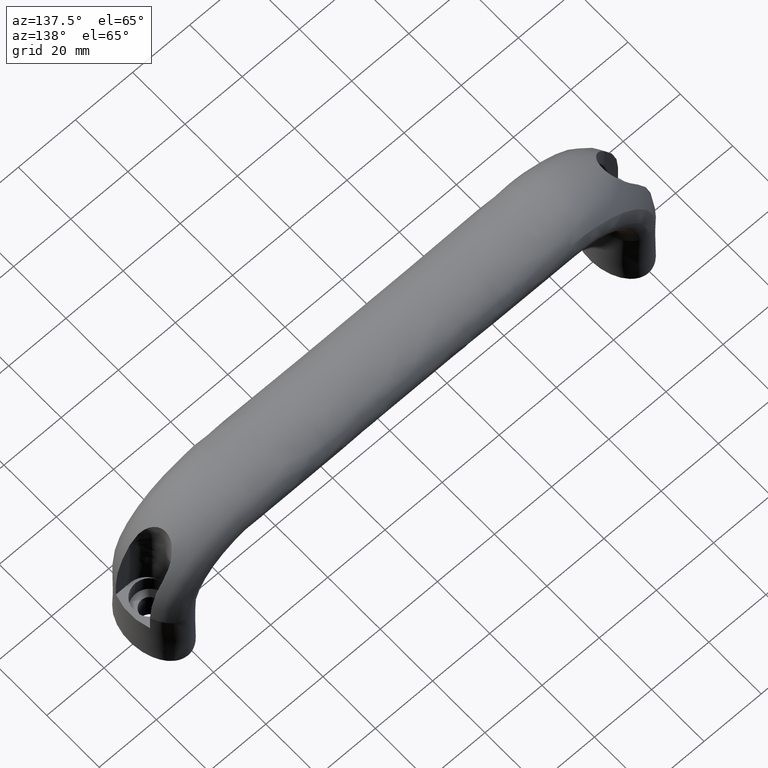
[diagram: clean part render]
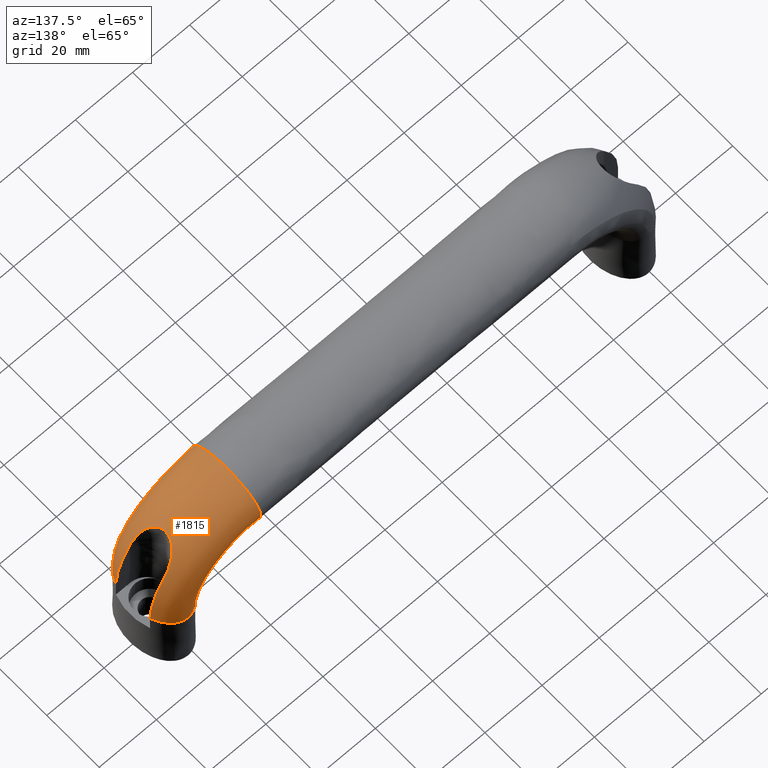
[diagram: same view with one face highlighted and labeled with its STEP entity id]
A machine part, auxiliary view. The second image highlights one B-rep face of the part: STEP entity #1815.
In plain terms, the highlighted face is a freeform B-spline surface patch.
Its self-contained STEP definition (entity closure, byte-faithful):
#991=CARTESIAN_POINT('',(137.0,10.975623890149990,43.945765449547217));
#992=VERTEX_POINT('',#991);
#993=CARTESIAN_POINT('',(137.0,13.0,48.499999999999851));
#994=VERTEX_POINT('',#993);
#995=CARTESIAN_POINT('',(137.0,10.975623890149990,43.945765449547217));
#996=CARTESIAN_POINT('',(137.0,11.376905334614779,44.359070101473328));
#997=CARTESIAN_POINT('',(137.0,11.723903875047570,44.794896195742702));
#998=CARTESIAN_POINT('',(137.0,12.661644796688099,46.275142982946001));
#999=CARTESIAN_POINT('',(137.0,13.0,47.387352601853507));
#1000=CARTESIAN_POINT('',(137.0,13.0,48.499999999999851));
#1001=B_SPLINE_CURVE_WITH_KNOTS('',3,(#995,#996,#997,#998,#999,#1000),.UNSPECIFIED.,.F.,.U.,(4,2,4),(0.410000262681718,0.437500000000000,0.500000000000000),.UNSPECIFIED.);
#1002=EDGE_CURVE('',#992,#994,#1001,.T.);
#1052=CARTESIAN_POINT('',(137.0,-13.0,48.499999999999893));
#1053=VERTEX_POINT('',#1052);
#1061=CARTESIAN_POINT('',(137.0,13.0,48.499999999999851));
#1062=CARTESIAN_POINT('',(137.0,13.0,49.612647398146201));
#1063=CARTESIAN_POINT('',(137.0,12.661644796688099,50.724857017053687));
#1064=CARTESIAN_POINT('',(137.0,11.359223048605360,52.780761333152498));
#1065=CARTESIAN_POINT('',(137.0,10.395668951176340,53.723647119786612));
#1066=CARTESIAN_POINT('',(137.0,6.785826563922671,56.083928680683300));
#1067=CARTESIAN_POINT('',(137.0,3.403392041388941,57.0));
#1068=CARTESIAN_POINT('',(137.0,-3.403392041388945,57.0));
#1069=CARTESIAN_POINT('',(137.0,-6.785826563922671,56.083928680683300));
#1070=CARTESIAN_POINT('',(137.0,-10.395668951176340,53.723647119786612));
#1071=CARTESIAN_POINT('',(137.0,-11.359223048605340,52.780761333152498));
#1072=CARTESIAN_POINT('',(137.0,-12.661644796688099,50.724857017053687));
#1073=CARTESIAN_POINT('',(137.0,-13.0,49.612647398146201));
#1074=CARTESIAN_POINT('',(137.0,-13.0,48.499999999999851));
#1075=B_SPLINE_CURVE_WITH_KNOTS('',3,(#1061,#1062,#1063,#1064,#1065,#1066,#1067,#1068,#1069,#1070,#1071,#1072,#1073,#1074),.UNSPECIFIED.,.F.,.U.,(4,2,2,2,2,2,4),(0.500000000000000,0.562500000000000,0.625000000000000,0.750000000000000,0.875000000000000,0.937500000000000,1.0),.UNSPECIFIED.);
#1076=EDGE_CURVE('',#994,#1053,#1075,.T.);
#1122=CARTESIAN_POINT('',(137.0,-10.516608837180710,43.504097342526421));
#1123=VERTEX_POINT('',#1122);
#1124=CARTESIAN_POINT('',(137.0,-10.516608837180710,43.504097342526421));
#1125=CARTESIAN_POINT('',(137.0,-10.116656519782090,43.143980818373947));
#1126=CARTESIAN_POINT('',(137.0,-9.673700473447195,42.804296567851686));
#1127=CARTESIAN_POINT('',(137.0,-6.785826563922671,40.916071319316451));
#1128=CARTESIAN_POINT('',(137.0,-3.403392041388941,40.0));
#1129=CARTESIAN_POINT('',(137.0,3.403392041388945,40.0));
#1130=CARTESIAN_POINT('',(137.0,6.785826563922680,40.916071319316451));
#1131=CARTESIAN_POINT('',(137.0,9.866230458323674,42.930181557963280));
#1132=CARTESIAN_POINT('',(137.0,10.464893340169111,43.419732374459478));
#1133=CARTESIAN_POINT('',(137.0,10.975623890149990,43.945765449547217));
#1134=B_SPLINE_CURVE_WITH_KNOTS('',3,(#1124,#1125,#1126,#1127,#1128,#1129,#1130,#1131,#1132,#1133),.UNSPECIFIED.,.F.,.U.,(4,2,2,2,4),(0.100000000014461,0.125000000000000,0.250000000000000,0.375000000000000,0.410000262681718),.UNSPECIFIED.);
#1135=EDGE_CURVE('',#1123,#992,#1134,.T.);
#1215=CARTESIAN_POINT('',(166.119074295760410,11.762630261538520,23.0));
#1216=VERTEX_POINT('',#1215);
#1217=CARTESIAN_POINT('',(169.853663332791000,6.500000001766840,23.0));
#1218=VERTEX_POINT('',#1217);
#1219=CARTESIAN_POINT('',(166.119074295760410,11.762630261538520,23.0));
#1220=CARTESIAN_POINT('',(167.004805719058200,11.124517999747891,23.0));
#1221=CARTESIAN_POINT('',(167.818058382626700,10.251275255068590,23.0));
#1222=CARTESIAN_POINT('',(169.034186361686810,8.391314816505879,23.0));
#1223=CARTESIAN_POINT('',(169.485117837063710,7.482112059641481,23.0));
#1224=CARTESIAN_POINT('',(169.853663332791000,6.500000001766840,23.0));
#1225=B_SPLINE_CURVE_WITH_KNOTS('',3,(#1219,#1220,#1221,#1222,#1223,#1224),.UNSPECIFIED.,.F.,.U.,(4,2,4),(0.884053326867303,0.950062492374966,1.0),.UNSPECIFIED.);
#1226=EDGE_CURVE('',#1216,#1218,#1225,.T.);
#1236=CARTESIAN_POINT('',(169.853663334116990,-6.500000000000000,23.0));
#1237=VERTEX_POINT('',#1236);
#1245=CARTESIAN_POINT('',(162.500000000000000,-13.0,23.0));
#1246=VERTEX_POINT('',#1245);
#1247=CARTESIAN_POINT('',(169.853663334117190,-6.499999999999981,23.0));
#1248=CARTESIAN_POINT('',(169.485117837596790,-7.482112058566550,23.0));
#1249=CARTESIAN_POINT('',(169.034186361996490,-8.391314816032333,23.0));
#1250=CARTESIAN_POINT('',(167.723647119786990,-10.395668951176340,23.0));
#1251=CARTESIAN_POINT('',(166.780761333152500,-11.359223048605340,23.0));
#1252=CARTESIAN_POINT('',(164.724857017054010,-12.661644796688099,23.0));
#1253=CARTESIAN_POINT('',(163.612647398146610,-13.0,23.0));
#1254=CARTESIAN_POINT('',(162.500000000000000,-13.0,23.0));
#1255=B_SPLINE_CURVE_WITH_KNOTS('',3,(#1247,#1248,#1249,#1250,#1251,#1252,#1253,#1254),.UNSPECIFIED.,.F.,.U.,(4,2,2,4),(0.0,0.049937507654554,0.124947923047922,0.199958338441289),.UNSPECIFIED.);
#1256=EDGE_CURVE('',#1237,#1246,#1255,.T.);
#1370=CARTESIAN_POINT('',(157.504097342526790,-10.516608837180700,23.0));
#1371=VERTEX_POINT('',#1370);
#1372=CARTESIAN_POINT('',(157.504097342526790,-10.516608837180700,23.0));
#1373=CARTESIAN_POINT('',(157.143980818374300,-10.116656519782079,23.0));
#1374=CARTESIAN_POINT('',(156.804296567852110,-9.673700473447189,23.0));
#1375=CARTESIAN_POINT('',(154.916071319316500,-6.785826563922671,23.0));
#1376=CARTESIAN_POINT('',(154.0,-3.403392041388941,23.0));
#1377=CARTESIAN_POINT('',(154.0,3.403392041388945,23.0));
#1378=CARTESIAN_POINT('',(154.916071319316500,6.785826563922680,23.0));
#1379=CARTESIAN_POINT('',(157.276352880213490,10.395668951176340,23.0));
#1380=CARTESIAN_POINT('',(158.219238666847500,11.359223048605340,23.0));
#1381=CARTESIAN_POINT('',(160.275142982945990,12.661644796688099,23.0));
#1382=CARTESIAN_POINT('',(161.387352601853510,13.0,23.0));
#1383=CARTESIAN_POINT('',(163.612647398146490,13.0,23.0));
#1384=CARTESIAN_POINT('',(164.724857017054010,12.661644796688099,23.0));
#1385=CARTESIAN_POINT('',(165.876163434596800,11.932288617427510,23.0));
#1386=CARTESIAN_POINT('',(165.998292738331490,11.849645569753029,23.0));
#1387=CARTESIAN_POINT('',(166.119074295760410,11.762630261538520,23.0));
#1388=B_SPLINE_CURVE_WITH_KNOTS('',3,(#1372,#1373,#1374,#1375,#1376,#1377,#1378,#1379,#1380,#1381,#1382,#1383,#1384,#1385,#1386,#1387),.UNSPECIFIED.,.F.,.U.,(4,2,2,2,2,2,2,4),(0.319975003088034,0.349979169228025,0.500000000014760,0.650020830801495,0.725031246194863,0.800041661588230,0.875052076981598,0.884053326867304),.UNSPECIFIED.);
#1389=EDGE_CURVE('',#1371,#1216,#1388,.T.);
#1435=CARTESIAN_POINT('',(137.0,-10.516608837527730,43.504097342838882));
#1436=CARTESIAN_POINT('',(137.0,-10.116656520294541,43.143980818766927));
#1437=CARTESIAN_POINT('',(137.0,-9.673700473725607,42.804296568033742));
#1438=CARTESIAN_POINT('',(137.0,-6.785826563922671,40.916071319316451));
#1439=CARTESIAN_POINT('',(137.0,-3.403392041388941,40.0));
#1440=CARTESIAN_POINT('',(137.0,3.403392041388945,40.0));
#1441=CARTESIAN_POINT('',(137.0,6.785826563922680,40.916071319316451));
#1442=CARTESIAN_POINT('',(137.0,10.395668951176340,43.276352880213103));
#1443=CARTESIAN_POINT('',(137.0,11.359223048605340,44.219238666847197));
#1444=CARTESIAN_POINT('',(137.0,12.661644796688099,46.275142982946001));
#1445=CARTESIAN_POINT('',(137.0,13.0,47.387352601853507));
#1446=CARTESIAN_POINT('',(137.0,13.0,49.612647398146201));
#1447=CARTESIAN_POINT('',(137.0,12.661644796688099,50.724857017053687));
#1448=CARTESIAN_POINT('',(137.0,11.359223048605360,52.780761333152498));
#1449=CARTESIAN_POINT('',(137.0,10.395668951176340,53.723647119786612));
#1450=CARTESIAN_POINT('',(137.0,6.785826563922671,56.083928680683300));
#1451=CARTESIAN_POINT('',(137.0,3.403392041388941,57.0));
#1452=CARTESIAN_POINT('',(137.0,-3.403392041388945,57.0));
#1453=CARTESIAN_POINT('',(137.0,-6.785826563922671,56.083928680683300));
#1454=CARTESIAN_POINT('',(137.0,-10.395668951176340,53.723647119786612));
#1455=CARTESIAN_POINT('',(137.0,-11.359223048605340,52.780761333152498));
#1456=CARTESIAN_POINT('',(137.0,-12.661644796688099,50.724857017053687));
#1457=CARTESIAN_POINT('',(137.0,-13.0,49.612647398146201));
#1458=CARTESIAN_POINT('',(137.0,-13.0,48.499999999999851));
#1459=CARTESIAN_POINT('',(139.684418888494290,-10.516608837527730,43.504073866951657));
#1460=CARTESIAN_POINT('',(139.637272038833910,-10.116656520294541,43.143957982680057));
#1461=CARTESIAN_POINT('',(139.592800204764700,-9.673700473725607,42.804274327601632));
#1462=CARTESIAN_POINT('',(139.345591687487400,-6.785826563922671,40.916052340191349));
#1463=CARTESIAN_POINT('',(139.225658627162010,-3.403392041388941,39.999982543785563));
#1464=CARTESIAN_POINT('',(139.225658627162010,3.403392041388945,39.999982543785563));
#1465=CARTESIAN_POINT('',(139.345591687487400,6.785826563922680,40.916052340200942));
#1466=CARTESIAN_POINT('',(139.654602334084190,10.395668951176340,43.276329824464447));
#1467=CARTESIAN_POINT('',(139.778045973753000,11.359223048605340,44.219213926563000));
#1468=CARTESIAN_POINT('',(140.047207217908010,12.661644796688099,46.275114471003398));
#1469=CARTESIAN_POINT('',(140.192818918993400,13.0,47.387321997762299));
#1470=CARTESIAN_POINT('',(140.484156950122610,13.0,49.612612510354701));
#1471=CARTESIAN_POINT('',(140.629768651083400,12.661644796688099,50.724819943469299));
#1472=CARTESIAN_POINT('',(140.898929894948400,11.359223048605360,52.780720148251298));
#1473=CARTESIAN_POINT('',(141.022373534363200,10.395668951176340,53.723604020825213));
#1474=CARTESIAN_POINT('',(141.331384180207610,6.785826563922671,56.083880718826400));
#1475=CARTESIAN_POINT('',(141.451317240160590,3.403392041388941,56.999950125207512));
#1476=CARTESIAN_POINT('',(141.451317240160590,-3.403392041388945,56.999950125207512));
#1477=CARTESIAN_POINT('',(141.331384180207610,-6.785826563922671,56.083880718826400));
#1478=CARTESIAN_POINT('',(141.022373534397590,-10.395668951176340,53.723604020812601));
#1479=CARTESIAN_POINT('',(140.898929894948400,-11.359223048605340,52.780720148251298));
#1480=CARTESIAN_POINT('',(140.629768651083400,-12.661644796688099,50.724819943469299));
#1481=CARTESIAN_POINT('',(140.484156950122410,-13.0,49.612612510342899));
#1482=CARTESIAN_POINT('',(140.338487934557890,-13.0,48.499967254052613));
#1483=CARTESIAN_POINT('',(142.366904198191410,-10.516608837527730,42.970430531064792));
#1484=CARTESIAN_POINT('',(142.272644458169910,-10.116656520294541,42.619686876915551));
#1485=CARTESIAN_POINT('',(142.183732822565390,-9.673700473725607,42.288843698679962));
#1486=CARTESIAN_POINT('',(141.689493849503010,-6.785826563922671,40.449763902770997));
#1487=CARTESIAN_POINT('',(141.449714115366390,-3.403392041388941,39.557535469688503));
#1488=CARTESIAN_POINT('',(141.449714115366390,3.403392041388945,39.557535469688503));
#1489=CARTESIAN_POINT('',(141.689493849503010,6.785826563922680,40.449763902770997));
#1490=CARTESIAN_POINT('',(142.307292565831010,10.395668951176340,42.748613647657251));
#1491=CARTESIAN_POINT('',(142.554090930148390,11.359223048605340,43.666958639198150));
#1492=CARTESIAN_POINT('',(143.092219545191990,12.661644796688099,45.669353264844503));
#1493=CARTESIAN_POINT('',(143.383338065205610,13.0,46.752615042193398));
#1494=CARTESIAN_POINT('',(143.965804280847010,13.0,48.919991366906999));
#1495=CARTESIAN_POINT('',(144.256922800907010,12.661644796688099,50.003253144244297));
#1496=CARTESIAN_POINT('',(144.795051415904200,11.359223048605360,52.005647769890601));
#1497=CARTESIAN_POINT('',(145.041849780268000,10.395668951176340,52.923992761431599));
#1498=CARTESIAN_POINT('',(145.659648496595990,6.785826563922671,55.222842506306201));
#1499=CARTESIAN_POINT('',(145.899428230732610,3.403392041388941,56.115070939400297));
#1500=CARTESIAN_POINT('',(145.899428230732610,-3.403392041388945,56.115070939400297));
#1501=CARTESIAN_POINT('',(145.659648496595990,-6.785826563922671,55.222842506306201));
#1502=CARTESIAN_POINT('',(145.041849780221610,-10.395668951176340,52.923992761420003));
#1503=CARTESIAN_POINT('',(144.795051415904200,-11.359223048605340,52.005647769890601));
#1504=CARTESIAN_POINT('',(144.256922800907010,-12.661644796688099,50.003253144244297));
#1505=CARTESIAN_POINT('',(143.965804280847010,-13.0,48.919991366895403));
#1506=CARTESIAN_POINT('',(143.674571173026290,-13.0,47.836303204538602));
#1507=CARTESIAN_POINT('',(147.326252499220000,-10.516608837527730,40.916201204270948));
#1508=CARTESIAN_POINT('',(147.144890984275090,-10.116656520294541,40.601536286601821));
#1509=CARTESIAN_POINT('',(146.973819549897600,-9.673700473725607,40.304724811299771));
#1510=CARTESIAN_POINT('',(146.022873484445000,-6.785826563922671,38.654819287086852));
#1511=CARTESIAN_POINT('',(145.561522585046990,-3.403392041388941,37.854368635694897));
#1512=CARTESIAN_POINT('',(145.561522585046990,3.403392041388945,37.854368635694897));
#1513=CARTESIAN_POINT('',(146.022873484445000,6.785826563922680,38.654819287086852));
#1514=CARTESIAN_POINT('',(147.211556066260810,10.395668951176340,40.717201192353002));
#1515=CARTESIAN_POINT('',(147.686411240258200,11.359223048605340,41.541081960346197));
#1516=CARTESIAN_POINT('',(148.721803665812390,12.661644796688099,43.337503171590399));
#1517=CARTESIAN_POINT('',(149.281933534744810,13.0,44.309336799783097));
#1518=CARTESIAN_POINT('',(150.402634220442510,13.0,46.253769107267097));
#1519=CARTESIAN_POINT('',(150.962764089328490,12.661644796688099,47.225602735471298));
#1520=CARTESIAN_POINT('',(151.998156514929010,11.359223048605360,49.022023946715599));
#1521=CARTESIAN_POINT('',(152.473011688880010,10.395668951176340,49.845904714708787));
#1522=CARTESIAN_POINT('',(153.661694270695990,6.785826563922671,51.908286619986498));
#1523=CARTESIAN_POINT('',(154.123045170094000,3.403392041388941,52.708737271366800));
#1524=CARTESIAN_POINT('',(154.123045170094000,-3.403392041388945,52.708737271366800));
#1525=CARTESIAN_POINT('',(153.661694270695990,-6.785826563922671,51.908286619986498));
#1526=CARTESIAN_POINT('',(152.473011688926500,-10.395668951176340,49.845904714720298));
#1527=CARTESIAN_POINT('',(151.998156514929010,-11.359223048605340,49.022023946715599));
#1528=CARTESIAN_POINT('',(150.962764089328490,-12.661644796688099,47.225602735471298));
#1529=CARTESIAN_POINT('',(150.402634220442510,-13.0,46.253769107278600));
#1530=CARTESIAN_POINT('',(149.842283877593590,-13.0,45.281552953536647));
#1531=CARTESIAN_POINT('',(149.600725843133090,-10.516608837527730,39.396446703309898));
#1532=CARTESIAN_POINT('',(149.379417413143900,-10.116656520294541,39.108473460928323));
#1533=CARTESIAN_POINT('',(149.170665569789490,-9.673700473725607,38.836839229975958));
#1534=CARTESIAN_POINT('',(148.010262929674610,-6.785826563922671,37.326888114511803));
#1535=CARTESIAN_POINT('',(147.447294301766990,-3.403392041388941,36.594336258540856));
#1536=CARTESIAN_POINT('',(147.447294301766990,3.403392041388945,36.594336258540856));
#1537=CARTESIAN_POINT('',(148.010262929674610,6.785826563922680,37.326888114511803));
#1538=CARTESIAN_POINT('',(149.460766229771990,10.395668951176340,39.214327008841998));
#1539=CARTESIAN_POINT('',(150.040213600711500,11.359223048605340,39.968321505140750));
#1540=CARTESIAN_POINT('',(151.303662862297500,12.661644796688099,41.612360010334847));
#1541=CARTESIAN_POINT('',(151.987167639587510,13.0,42.501757160294048));
#1542=CARTESIAN_POINT('',(153.354715265760010,13.0,44.281251615305500));
#1543=CARTESIAN_POINT('',(154.038220043096000,12.661644796688099,45.170648765276297));
#1544=CARTESIAN_POINT('',(155.301669304635510,11.359223048605360,46.814687270470401));
#1545=CARTESIAN_POINT('',(155.881116675574990,10.395668951176340,47.568681766769203));
#1546=CARTESIAN_POINT('',(157.331619975672510,6.785826563922671,49.456120661087802));
#1547=CARTESIAN_POINT('',(157.894588603579990,3.403392041388941,50.188672517070302));
#1548=CARTESIAN_POINT('',(157.894588603579990,-3.403392041388945,50.188672517070302));
#1549=CARTESIAN_POINT('',(157.331619975672510,-6.785826563922671,49.456120661099298));
#1550=CARTESIAN_POINT('',(155.881116675574990,-10.395668951176340,47.568681766757599));
#1551=CARTESIAN_POINT('',(155.301669304635510,-11.359223048605340,46.814687270470401));
#1552=CARTESIAN_POINT('',(154.038220043096000,-12.661644796688099,45.170648765276297));
#1553=CARTESIAN_POINT('',(153.354715265760010,-13.0,44.281251615317103));
#1554=CARTESIAN_POINT('',(152.670941452673700,-13.0,43.391504387805583));
#1555=CARTESIAN_POINT('',(153.396446703328000,-10.516608837527730,35.600725843151203));
#1556=CARTESIAN_POINT('',(153.108473460939900,-10.116656520294541,35.379417413155558));
#1557=CARTESIAN_POINT('',(152.836839229982900,-9.673700473725607,35.170665569796512));
#1558=CARTESIAN_POINT('',(151.326888114546510,-6.785826563922671,34.010262929709292));
#1559=CARTESIAN_POINT('',(150.594336258575510,-3.403392041388941,33.447294301801698));
#1560=CARTESIAN_POINT('',(150.594336258575510,3.403392041388945,33.447294301801698));
#1561=CARTESIAN_POINT('',(151.326888114546510,6.785826563922680,34.010262929709292));
#1562=CARTESIAN_POINT('',(153.214327008888490,10.395668951176340,35.460766229818297));
#1563=CARTESIAN_POINT('',(153.968321505175510,11.359223048605340,36.040213600746348));
#1564=CARTESIAN_POINT('',(155.612360010358000,12.661644796688099,37.303662862320550));
#1565=CARTESIAN_POINT('',(156.501757160328990,13.0,37.987167639622157));
#1566=CARTESIAN_POINT('',(158.281251615352010,13.0,39.354715265806249));
#1567=CARTESIAN_POINT('',(159.170648765276010,12.661644796688099,40.038220043096253));
#1568=CARTESIAN_POINT('',(160.814687270505000,11.359223048605360,41.301669304670462));
#1569=CARTESIAN_POINT('',(161.568681766792000,10.395668951176340,41.881116675598498));
#1570=CARTESIAN_POINT('',(163.456120661134010,6.785826563922671,43.331619975719050));
#1571=CARTESIAN_POINT('',(164.188672517105000,3.403392041388941,43.894588603615098));
#1572=CARTESIAN_POINT('',(164.188672517105000,-3.403392041388945,43.894588603615098));
#1573=CARTESIAN_POINT('',(163.456120661134010,-6.785826563922671,43.331619975707497));
#1574=CARTESIAN_POINT('',(161.568681766792000,-10.395668951176340,41.881116675610052));
#1575=CARTESIAN_POINT('',(160.814687270505000,-11.359223048605340,41.301669304670462));
#1576=CARTESIAN_POINT('',(159.170648765276010,-12.661644796688099,40.038220043096253));
#1577=CARTESIAN_POINT('',(158.281251615352010,-13.0,39.354715265794653));
#1578=CARTESIAN_POINT('',(157.391504387840510,-13.0,38.670941452708398));
#1579=CARTESIAN_POINT('',(154.916201204249690,-10.516608837527730,33.326252499177833));
#1580=CARTESIAN_POINT('',(154.601536286582590,-10.116656520294541,33.144890984231559));
#1581=CARTESIAN_POINT('',(154.304724811281400,-9.673700473725607,32.973819549853211));
#1582=CARTESIAN_POINT('',(152.654819287040990,-6.785826563922671,32.022873484409843));
#1583=CARTESIAN_POINT('',(151.854368635660510,-3.403392041388941,31.561522585011900));
#1584=CARTESIAN_POINT('',(151.854368635660510,3.403392041388945,31.561522585011900));
#1585=CARTESIAN_POINT('',(152.654819287040990,6.785826563922680,32.022873484409843));
#1586=CARTESIAN_POINT('',(154.717201192295510,10.395668951176340,33.211556066214051));
#1587=CARTESIAN_POINT('',(155.541081960323510,11.359223048605340,33.686411240176703));
#1588=CARTESIAN_POINT('',(157.337503171578990,12.661644796688099,34.721803665754187));
#1589=CARTESIAN_POINT('',(158.309336799748510,13.0,35.281933534663253));
#1590=CARTESIAN_POINT('',(160.253769107279000,13.0,36.402634220360902));
#1591=CARTESIAN_POINT('',(161.225602735448490,12.661644796688099,36.962764089281549));
#1592=CARTESIAN_POINT('',(163.022023946658010,11.359223048605360,37.998156514870651));
#1593=CARTESIAN_POINT('',(163.845904714685990,10.395668951176340,38.473011688821700));
#1594=CARTESIAN_POINT('',(165.908286619940500,6.785826563922671,39.661694270637497));
#1595=CARTESIAN_POINT('',(166.708737271367000,3.403392041388941,40.123045170023900));
#1596=CARTESIAN_POINT('',(166.708737271367000,-3.403392041388945,40.123045170023900));
#1597=CARTESIAN_POINT('',(165.908286619940500,-6.785826563922671,39.661694270625901));
#1598=CARTESIAN_POINT('',(163.845904714685990,-10.395668951176340,38.473011688833253));
#1599=CARTESIAN_POINT('',(163.022023946658010,-11.359223048605340,37.998156514870651));
#1600=CARTESIAN_POINT('',(161.225602735448490,-12.661644796688099,36.962764089281549));
#1601=CARTESIAN_POINT('',(160.253769107232500,-13.0,36.402634220360902));
#1602=CARTESIAN_POINT('',(159.281552953490490,-13.0,35.842283877517850));
#1603=CARTESIAN_POINT('',(156.970430531086490,-10.516608837527730,28.366904198232771));
#1604=CARTESIAN_POINT('',(156.619686876935190,-10.116656520294541,28.272644458212579));
#1605=CARTESIAN_POINT('',(156.288843698698710,-9.673700473725607,28.183732822609059));
#1606=CARTESIAN_POINT('',(154.449763902817490,-6.785826563922671,27.689493849537300));
#1607=CARTESIAN_POINT('',(153.557535469723490,-3.403392041388941,27.449714115400749));
#1608=CARTESIAN_POINT('',(153.557535469723490,3.403392041388945,27.449714115400749));
#1609=CARTESIAN_POINT('',(154.449763902817490,6.785826563922680,27.689493849537349));
#1610=CARTESIAN_POINT('',(156.748613647715500,10.395668951176340,28.307292565876999));
#1611=CARTESIAN_POINT('',(157.666958639221490,11.359223048605340,28.554090930229201));
#1612=CARTESIAN_POINT('',(159.669353264856510,12.661644796688099,29.092219545249399));
#1613=CARTESIAN_POINT('',(160.752615042228510,13.0,29.383338065286299));
#1614=CARTESIAN_POINT('',(162.919991366895490,13.0,29.965804280927550));
#1615=CARTESIAN_POINT('',(164.003253144268000,12.661644796688099,30.256922800952900));
#1616=CARTESIAN_POINT('',(166.005647769949010,11.359223048605360,30.795051415961549));
#1617=CARTESIAN_POINT('',(166.923992761455000,10.395668951176340,31.041849780325300));
#1618=CARTESIAN_POINT('',(169.222842506353000,6.785826563922671,31.659648496653400));
#1619=CARTESIAN_POINT('',(170.115070939400510,3.403392041388941,31.899428230801600));
#1620=CARTESIAN_POINT('',(170.115070939400510,-3.403392041388945,31.899428230801600));
#1621=CARTESIAN_POINT('',(169.222842506353000,-6.785826563922671,31.659648496664939));
#1622=CARTESIAN_POINT('',(166.923992761455000,-10.395668951176340,31.041849780313701));
#1623=CARTESIAN_POINT('',(166.005647769949010,-11.359223048605340,30.795051415961549));
#1624=CARTESIAN_POINT('',(164.003253144268000,-12.661644796688099,30.256922800952900));
#1625=CARTESIAN_POINT('',(162.919991366942010,-13.0,29.965804280927550));
#1626=CARTESIAN_POINT('',(161.836303204585310,-13.0,29.674571173101128));
#1627=CARTESIAN_POINT('',(157.504073867166600,-10.516608837527730,25.684418888462950));
#1628=CARTESIAN_POINT('',(157.143957982889110,-10.116656520294541,25.637272038801530));
#1629=CARTESIAN_POINT('',(156.804274327806100,-9.673700473725607,25.592800204731660));
#1630=CARTESIAN_POINT('',(154.916052340392500,-6.785826563922671,25.345591687461301));
#1631=CARTESIAN_POINT('',(153.999982543989490,-3.403392041388941,25.225658627135701));
#1632=CARTESIAN_POINT('',(153.999982543989490,3.403392041388945,25.225658627135701));
#1633=CARTESIAN_POINT('',(154.916052340392500,6.785826563922680,25.345591687461351));
#1634=CARTESIAN_POINT('',(157.276329824700500,10.395668951176340,25.654602334049301));
#1635=CARTESIAN_POINT('',(158.219213926794510,11.359223048605340,25.778045973691949));
#1636=CARTESIAN_POINT('',(160.275114471258010,12.661644796688099,26.047207217864550));
#1637=CARTESIAN_POINT('',(161.387321998000490,13.0,26.192818918932549));
#1638=CARTESIAN_POINT('',(163.612612510603500,13.0,26.484156950061649));
#1639=CARTESIAN_POINT('',(164.724819943747010,12.661644796688099,26.629768651048749));
#1640=CARTESIAN_POINT('',(166.780720148513500,11.359223048605360,26.898929894905049));
#1641=CARTESIAN_POINT('',(167.723604021103990,10.395668951176340,27.022373534319499));
#1642=CARTESIAN_POINT('',(170.083880719114490,6.785826563922671,27.331384180164200));
#1643=CARTESIAN_POINT('',(170.999950125525490,3.403392041388941,27.451317240108299));
#1644=CARTESIAN_POINT('',(170.999950125525490,-3.403392041388945,27.451317240108299));
#1645=CARTESIAN_POINT('',(170.083880719114490,-6.785826563922671,27.331384180155499));
#1646=CARTESIAN_POINT('',(167.723604021103990,-10.395668951176340,27.022373534328199));
#1647=CARTESIAN_POINT('',(166.780720148513500,-11.359223048605340,26.898929894905049));
#1648=CARTESIAN_POINT('',(164.724819943747010,-12.661644796688099,26.629768651048749));
#1649=CARTESIAN_POINT('',(163.612612510603500,-13.0,26.484156950061649));
#1650=CARTESIAN_POINT('',(162.499967254301990,-13.0,26.338487934501451));
#1651=CARTESIAN_POINT('',(157.504097342839200,-10.516608837527730,23.0));
#1652=CARTESIAN_POINT('',(157.143980818767290,-10.116656520294541,23.0));
#1653=CARTESIAN_POINT('',(156.804296568034090,-9.673700473725607,23.0));
#1654=CARTESIAN_POINT('',(154.916071319316500,-6.785826563922671,23.0));
#1655=CARTESIAN_POINT('',(154.0,-3.403392041388941,23.0));
#1656=CARTESIAN_POINT('',(154.0,3.403392041388945,23.0));
#1657=CARTESIAN_POINT('',(154.916071319316500,6.785826563922680,23.0));
#1658=CARTESIAN_POINT('',(157.276352880213490,10.395668951176340,23.0));
#1659=CARTESIAN_POINT('',(158.219238666847500,11.359223048605340,23.0));
#1660=CARTESIAN_POINT('',(160.275142982945990,12.661644796688099,23.0));
#1661=CARTESIAN_POINT('',(161.387352601853510,13.0,23.0));
#1662=CARTESIAN_POINT('',(163.612647398146490,13.0,23.0));
#1663=CARTESIAN_POINT('',(164.724857017054010,12.661644796688099,23.0));
#1664=CARTESIAN_POINT('',(166.780761333152500,11.359223048605360,23.0));
#1665=CARTESIAN_POINT('',(167.723647119786990,10.395668951176340,23.0));
#1666=CARTESIAN_POINT('',(170.083928680683500,6.785826563922671,23.0));
#1667=CARTESIAN_POINT('',(171.0,3.403392041388941,23.0));
#1668=CARTESIAN_POINT('',(171.0,-3.403392041388945,23.0));
#1669=CARTESIAN_POINT('',(170.083928680683500,-6.785826563922671,23.0));
#1670=CARTESIAN_POINT('',(167.723647119786990,-10.395668951176340,23.0));
#1671=CARTESIAN_POINT('',(166.780761333152500,-11.359223048605340,23.0));
#1672=CARTESIAN_POINT('',(164.724857017054010,-12.661644796688099,23.0));
#1673=CARTESIAN_POINT('',(163.612647398146490,-13.0,23.0));
#1674=CARTESIAN_POINT('',(162.500000000000000,-13.0,23.0));
#1675=B_SPLINE_SURFACE_WITH_KNOTS('',3,3,((#1435,#1459,#1483,#1507,#1531,#1555,#1579,#1603,#1627,#1651),(#1436,#1460,#1484,#1508,#1532,#1556,#1580,#1604,#1628,#1652),(#1437,#1461,#1485,#1509,#1533,#1557,#1581,#1605,#1629,#1653),(#1438,#1462,#1486,#1510,#1534,#1558,#1582,#1606,#1630,#1654),(#1439,#1463,#1487,#1511,#1535,#1559,#1583,#1607,#1631,#1655),(#1440,#1464,#1488,#1512,#1536,#1560,#1584,#1608,#1632,#1656),(#1441,#1465,#1489,#1513,#1537,#1561,#1585,#1609,#1633,#1657),(#1442,#1466,#1490,#1514,#1538,#1562,#1586,#1610,#1634,#1658),(#1443,#1467,#1491,#1515,#1539,#1563,#1587,#1611,#1635,#1659),(#1444,#1468,#1492,#1516,#1540,#1564,#1588,#1612,#1636,#1660),(#1445,#1469,#1493,#1517,#1541,#1565,#1589,#1613,#1637,#1661),(#1446,#1470,#1494,#1518,#1542,#1566,#1590,#1614,#1638,#1662),(#1447,#1471,#1495,#1519,#1543,#1567,#1591,#1615,#1639,#1663),(#1448,#1472,#1496,#1520,#1544,#1568,#1592,#1616,#1640,#1664),(#1449,#1473,#1497,#1521,#1545,#1569,#1593,#1617,#1641,#1665),(#1450,#1474,#1498,#1522,#1546,#1570,#1594,#1618,#1642,#1666),(#1451,#1475,#1499,#1523,#1547,#1571,#1595,#1619,#1643,#1667),(#1452,#1476,#1500,#1524,#1548,#1572,#1596,#1620,#1644,#1668),(#1453,#1477,#1501,#1525,#1549,#1573,#1597,#1621,#1645,#1669),(#1454,#1478,#1502,#1526,#1550,#1574,#1598,#1622,#1646,#1670),(#1455,#1479,#1503,#1527,#1551,#1575,#1599,#1623,#1647,#1671),(#1456,#1480,#1504,#1528,#1552,#1576,#1600,#1624,#1648,#1672),(#1457,#1481,#1505,#1529,#1553,#1577,#1601,#1625,#1649,#1673),(#1458,#1482,#1506,#1530,#1554,#1578,#1602,#1626,#1650,#1674)),.UNSPECIFIED.,.F.,.F.,.U.,(4,2,2,2,2,2,2,2,2,2,2,4),(4,2,2,2,4),(0.0,2.000699105379630,12.004194632277780,22.007690159175930,27.009437922625001,32.011185686074079,37.012933449523153,42.014681212972228,52.018176739870377,62.021672266768533,67.023420030217608,72.025167793666682),(0.0,13.237780774986881,26.475561549973790,39.713342324960642,52.951123099947580),.UNSPECIFIED.);
#1676=ORIENTED_EDGE('',*,*,#1389,.F.);
#1677=CARTESIAN_POINT('',(137.0,-10.516608837180710,43.504097342526421));
#1678=CARTESIAN_POINT('',(139.684418888494290,-10.516608837527730,43.504073866951657));
#1679=CARTESIAN_POINT('',(142.366904198191410,-10.516608837527730,42.970430531064792));
#1680=CARTESIAN_POINT('',(147.326252499220000,-10.516608837527730,40.916201204270962));
#1681=CARTESIAN_POINT('',(149.600725843133090,-10.516608837527730,39.396446703309898));
#1682=CARTESIAN_POINT('',(153.396446703328000,-10.516608837527730,35.600725843151203));
#1683=CARTESIAN_POINT('',(154.916201204249690,-10.516608837527730,33.326252499177833));
#1684=CARTESIAN_POINT('',(156.970430531086490,-10.516608837527730,28.366904198232771));
#1685=CARTESIAN_POINT('',(157.504073867166710,-10.516608837527730,25.684418888462950));
#1686=CARTESIAN_POINT('',(157.504097342526790,-10.516608837180700,23.0));
#1687=B_SPLINE_CURVE_WITH_KNOTS('',3,(#1677,#1678,#1679,#1680,#1681,#1682,#1683,#1684,#1685,#1686),.UNSPECIFIED.,.F.,.U.,(4,2,2,2,4),(0.732941668224278,0.775353258581125,0.817764848937972,0.860176439294819,0.902588029651666),.UNSPECIFIED.);
#1688=EDGE_CURVE('',#1123,#1371,#1687,.T.);
#1689=ORIENTED_EDGE('',*,*,#1688,.F.);
#1690=ORIENTED_EDGE('',*,*,#1135,.T.);
#1691=ORIENTED_EDGE('',*,*,#1002,.T.);
#1692=ORIENTED_EDGE('',*,*,#1076,.T.);
#1693=CARTESIAN_POINT('',(137.0,-13.0,48.499999999999851));
#1694=CARTESIAN_POINT('',(140.338487934557890,-13.0,48.499967254052613));
#1695=CARTESIAN_POINT('',(143.674571173026290,-13.0,47.836303204538602));
#1696=CARTESIAN_POINT('',(149.842283877593590,-13.0,45.281552953536647));
#1697=CARTESIAN_POINT('',(152.670941452673700,-13.0,43.391504387805583));
#1698=CARTESIAN_POINT('',(157.391504387840510,-13.0,38.670941452708398));
#1699=CARTESIAN_POINT('',(159.281552953490490,-13.0,35.842283877517850));
#1700=CARTESIAN_POINT('',(161.836303204585310,-13.0,29.674571173101128));
#1701=CARTESIAN_POINT('',(162.499967254301990,-13.0,26.338487934501451));
#1702=CARTESIAN_POINT('',(162.500000000000000,-13.0,23.0));
#1703=B_SPLINE_CURVE_WITH_KNOTS('',3,(#1693,#1694,#1695,#1696,#1697,#1698,#1699,#1700,#1701,#1702),.UNSPECIFIED.,.F.,.U.,(4,2,2,2,4),(0.732941668224278,0.775353258581125,0.817764848937972,0.860176439294819,0.902588029651666),.UNSPECIFIED.);
#1704=EDGE_CURVE('',#1053,#1246,#1703,.T.);
#1705=ORIENTED_EDGE('',*,*,#1704,.T.);
#1706=ORIENTED_EDGE('',*,*,#1256,.F.);
#1707=CARTESIAN_POINT('',(165.000000113446500,-6.500000000000000,40.182550216688149));
#1708=VERTEX_POINT('',#1707);
#1709=CARTESIAN_POINT('',(169.853663334116990,-6.500000000000000,23.0));
#1710=CARTESIAN_POINT('',(169.853615840361610,-6.500000000001147,27.301237588897958));
#1711=CARTESIAN_POINT('',(168.998570350858190,-6.500000000001147,31.599377028257940));
#1712=CARTESIAN_POINT('',(166.691898024946400,-6.500000000001148,37.168176641282123));
#1713=CARTESIAN_POINT('',(165.903660173852390,-6.500000000001148,38.710772320272177));
#1714=CARTESIAN_POINT('',(165.000000113446500,-6.500000000000000,40.182550216688149));
#1715=B_SPLINE_CURVE_WITH_KNOTS('',3,(#1709,#1710,#1711,#1712,#1713,#1714),.UNSPECIFIED.,.F.,.U.,(4,2,4),(0.843143980250280,0.885555570607128,0.902588029651666),.UNSPECIFIED.);
#1716=EDGE_CURVE('',#1237,#1708,#1715,.T.);
#1717=ORIENTED_EDGE('',*,*,#1716,.T.);
#1718=CARTESIAN_POINT('',(164.999999659661000,6.500000000000000,40.182550955764853));
#1719=VERTEX_POINT('',#1718);
#1720=CARTESIAN_POINT('',(165.000000113446500,-6.500000000000000,40.182550216688050));
#1721=CARTESIAN_POINT('',(164.689212608826410,-6.500000005424270,40.688725266696551));
#1722=CARTESIAN_POINT('',(164.374074845243510,-6.477785470166354,41.187420827523759));
#1723=CARTESIAN_POINT('',(163.737511581159000,-6.384325327640164,42.170530818767027));
#1724=CARTESIAN_POINT('',(163.416074608341600,-6.313138583342914,42.654949610204518));
#1725=CARTESIAN_POINT('',(162.769004849002410,-6.114507261837107,43.609429982129477));
#1726=CARTESIAN_POINT('',(162.443352743761810,-5.987184829561596,44.079503627848403));
#1727=CARTESIAN_POINT('',(161.953397587413210,-5.744686291144258,44.773056855377838));
#1728=CARTESIAN_POINT('',(161.789835630334300,-5.655218018702094,45.002306627474127));
#1729=CARTESIAN_POINT('',(161.544397005196400,-5.506175575854278,45.343073611799738));
#1730=CARTESIAN_POINT('',(161.462568761581590,-5.454015223680504,45.456143779292020));
#1731=CARTESIAN_POINT('',(161.298935921170600,-5.344326572270379,45.681199160383663));
#1732=CARTESIAN_POINT('',(161.217537074499210,-5.287066613948145,45.792625823597227));
#1733=CARTESIAN_POINT('',(160.975082078798100,-5.107879440632948,46.123028629151939));
#1734=CARTESIAN_POINT('',(160.815615421996310,-4.978481928477951,46.338334893328472));
#1735=CARTESIAN_POINT('',(160.502109519283210,-4.697162742794188,46.758081993832548));
#1736=CARTESIAN_POINT('',(160.348062168985190,-4.545261243911887,46.962530146166223));
#1737=CARTESIAN_POINT('',(160.122207124204890,-4.297629346581642,47.259996025900570));
#1738=CARTESIAN_POINT('',(160.047623152098510,-4.211552535147323,47.357836201639202));
#1739=CARTESIAN_POINT('',(159.901819477926410,-4.033827780692390,47.548408649377222));
#1740=CARTESIAN_POINT('',(159.830493398239210,-3.942085084421913,47.641282878661649));
#1741=CARTESIAN_POINT('',(159.621647738186600,-3.657685090563007,47.912314078498731));
#1742=CARTESIAN_POINT('',(159.489221668936210,-3.455918910347673,48.082928774671799));
#1743=CARTESIAN_POINT('',(159.240885692348910,-3.024013181259413,48.401169299522572));
#1744=CARTESIAN_POINT('',(159.124938157978790,-2.793933984893013,48.548842090679940));
#1745=CARTESIAN_POINT('',(158.993161716052900,-2.484435550175773,48.716007954626818));
#1746=CARTESIAN_POINT('',(158.967477281051400,-2.421428857662542,48.748553322920571));
#1747=CARTESIAN_POINT('',(158.918014619218810,-2.294363069637354,48.811168705833367));
#1748=CARTESIAN_POINT('',(158.894170724898690,-2.230154022212151,48.841322081400008));
#1749=CARTESIAN_POINT('',(158.825381828415490,-2.035446593019120,48.928240657194202));
#1750=CARTESIAN_POINT('',(158.783175058888110,-1.902871545563769,48.981470646326301));
#1751=CARTESIAN_POINT('',(158.706592932507590,-1.631827181470082,49.077943605270448));
#1752=CARTESIAN_POINT('',(158.672215867690310,-1.493359183234203,49.121188843599562));
#1753=CARTESIAN_POINT('',(158.627041068774190,-1.280873873466187,49.177980152797147));
#1754=CARTESIAN_POINT('',(158.613049384141390,-1.209247073544354,49.195562501257967));
#1755=CARTESIAN_POINT('',(158.587306337908700,-1.064319806479974,49.227904567774608));
#1756=CARTESIAN_POINT('',(158.575604674404390,-0.991256225890884,49.242601862367437));
#1757=CARTESIAN_POINT('',(158.523489223162900,-0.626031497527239,49.308052797033668));
#1758=CARTESIAN_POINT('',(158.501634584057310,-0.331248121719517,49.335504704308150));
#1759=CARTESIAN_POINT('',(158.499314520735510,0.114925623752963,49.338422379388163));
#1760=CARTESIAN_POINT('',(158.503635430206710,0.264319470098354,49.332987950655578));
#1761=CARTESIAN_POINT('',(158.518017573634610,0.489446805868950,49.314921605578540));
#1762=CARTESIAN_POINT('',(158.524106482726890,0.564221082978100,49.307274335651726));
#1763=CARTESIAN_POINT('',(158.538727947265190,0.712394369773450,49.288912516066603));
#1764=CARTESIAN_POINT('',(158.547269032896000,0.785930843997418,49.278187241437600));
#1765=CARTESIAN_POINT('',(158.595930530112890,1.150948231141233,49.217077134939920));
#1766=CARTESIAN_POINT('',(158.653824187808400,1.434481304362112,49.144381620405007));
#1767=CARTESIAN_POINT('',(158.747821647577810,1.779148982727584,49.026011221795493));
#1768=CARTESIAN_POINT('',(158.767700341648210,1.847535783760730,49.000963593399277));
#1769=CARTESIAN_POINT('',(158.809140605111590,1.981970599299857,48.948707862718358));
#1770=CARTESIAN_POINT('',(158.830749980487100,2.048199474750398,48.921439573849533));
#1771=CARTESIAN_POINT('',(158.898098156004490,2.244072515040037,48.836380192921339));
#1772=CARTESIAN_POINT('',(158.946352036763500,2.370908694712055,48.775341102796233));
#1773=CARTESIAN_POINT('',(159.100210799574910,2.741155631551093,48.580280165248787));
#1774=CARTESIAN_POINT('',(159.214866081287710,2.974357956431636,48.434376863033528));
#1775=CARTESIAN_POINT('',(159.371038356046990,3.250973245477050,48.234398155800392));
#1776=CARTESIAN_POINT('',(159.402927134426510,3.305552061001951,48.193506978970682));
#1777=CARTESIAN_POINT('',(159.467464270733700,3.412469413038642,48.110623420099941));
#1778=CARTESIAN_POINT('',(159.500171546485490,3.464914803312677,48.068555676792919));
#1779=CARTESIAN_POINT('',(159.599525146780310,3.619373123750202,47.940563778127341));
#1780=CARTESIAN_POINT('',(159.667400710081410,3.718513518367949,47.852854059092579));
#1781=CARTESIAN_POINT('',(159.875380008407890,4.005508935737817,47.583161061682723));
#1782=CARTESIAN_POINT('',(160.019812204222010,4.182989073625944,47.394643756732947));
#1783=CARTESIAN_POINT('',(160.318012343672510,4.514272882457092,47.002283519497333));
#1784=CARTESIAN_POINT('',(160.471850239265390,4.668104860049530,46.798348903009689));
#1785=CARTESIAN_POINT('',(160.787084805867290,4.954461505260111,46.376738562883318));
#1786=CARTESIAN_POINT('',(160.946399775732800,5.085126274307585,46.161848371281231));
#1787=CARTESIAN_POINT('',(161.427982554471410,5.445312423008402,45.506309127974227));
#1788=CARTESIAN_POINT('',(161.753825824867190,5.643332564580732,45.054876734285429));
#1789=CARTESIAN_POINT('',(162.246027102683910,5.890615042870061,44.359116661421453));
#1790=CARTESIAN_POINT('',(162.410687531709410,5.964653791453902,44.124068196751132));
#1791=CARTESIAN_POINT('',(162.658226120773890,6.064157284912963,43.766993608886942));
#1792=CARTESIAN_POINT('',(162.740830882622390,6.095396002478932,43.647217426865993));
#1793=CARTESIAN_POINT('',(162.906172559095490,6.154151783606222,43.406183301911803));
#1794=CARTESIAN_POINT('',(162.988881237986790,6.181654053424578,43.284964804677017));
#1795=CARTESIAN_POINT('',(163.400887375328810,6.309672494819826,42.677796584145867));
#1796=CARTESIAN_POINT('',(163.726999563526500,6.382418707528482,42.186584400524303));
#1797=CARTESIAN_POINT('',(164.370529916418410,6.477620402844470,41.193072914688557));
#1798=CARTESIAN_POINT('',(164.687956580554190,6.499999983661472,40.690770927227220));
#1799=CARTESIAN_POINT('',(164.999999659661000,6.500000000000000,40.182550955764853));
#1800=B_SPLINE_CURVE_WITH_KNOTS('',3,(#1720,#1721,#1722,#1723,#1724,#1725,#1726,#1727,#1728,#1729,#1730,#1731,#1732,#1733,#1734,#1735,#1736,#1737,#1738,#1739,#1740,#1741,#1742,#1743,#1744,#1745,#1746,#1747,#1748,#1749,#1750,#1751,#1752,#1753,#1754,#1755,#1756,#1757,#1758,#1759,#1760,#1761,#1762,#1763,#1764,#1765,#1766,#1767,#1768,#1769,#1770,#1771,#1772,#1773,#1774,#1775,#1776,#1777,#1778,#1779,#1780,#1781,#1782,#1783,#1784,#1785,#1786,#1787,#1788,#1789,#1790,#1791,#1792,#1793,#1794,#1795,#1796,#1797,#1798,#1799),.UNSPECIFIED.,.F.,.U.,(4,2,2,2,2,2,2,2,2,2,2,2,2,2,2,2,2,2,2,2,2,2,2,2,2,2,2,2,2,2,2,2,2,2,2,2,2,2,2,4),(0.0,0.062499999999999,0.124999999999999,0.187499999999998,0.218749999999998,0.234374999999996,0.249999999999995,0.281249999999994,0.312499999999992,0.328124999999992,0.343749999999992,0.374999999999990,0.406249999999989,0.414062499999988,0.421874999999988,0.437499999999987,0.453124999999985,0.460937499999985,0.468749999999985,0.499999999999983,0.515624999999982,0.523437499999981,0.531249999999980,0.562499999999977,0.570312499999977,0.578124999999976,0.593749999999975,0.624999999999973,0.632812499999973,0.640624999999973,0.656249999999973,0.687499999999974,0.718749999999976,0.749999999999977,0.812499999999981,0.843749999999984,0.859374999999986,0.874999999999987,0.937499999999994,1.0),.UNSPECIFIED.);
#1801=EDGE_CURVE('',#1708,#1719,#1800,.T.);
#1802=ORIENTED_EDGE('',*,*,#1801,.T.);
#1803=CARTESIAN_POINT('',(164.999999659660800,6.499999999999989,40.182550955764867));
#1804=CARTESIAN_POINT('',(165.903659909969600,6.499999999999989,38.710772836699000));
#1805=CARTESIAN_POINT('',(166.691897914315210,6.499999999999989,37.168176908372253));
#1806=CARTESIAN_POINT('',(168.998570350858610,6.499999999999989,31.599377028254072));
#1807=CARTESIAN_POINT('',(169.853615840362010,6.499999999999989,27.301237588901021));
#1808=CARTESIAN_POINT('',(169.853663332791000,6.500000001766840,23.0));
#1809=B_SPLINE_CURVE_WITH_KNOTS('',3,(#1803,#1804,#1805,#1806,#1807,#1808),.UNSPECIFIED.,.F.,.U.,(4,2,4),(0.843143977399251,0.860176439294819,0.902588029651666),.UNSPECIFIED.);
#1810=EDGE_CURVE('',#1719,#1218,#1809,.T.);
#1811=ORIENTED_EDGE('',*,*,#1810,.T.);
#1812=ORIENTED_EDGE('',*,*,#1226,.F.);
#1813=EDGE_LOOP('',(#1676,#1689,#1690,#1691,#1692,#1705,#1706,#1717,#1802,#1811,#1812));
#1814=FACE_OUTER_BOUND('',#1813,.T.);
#1815=ADVANCED_FACE('',(#1814),#1675,.T.);